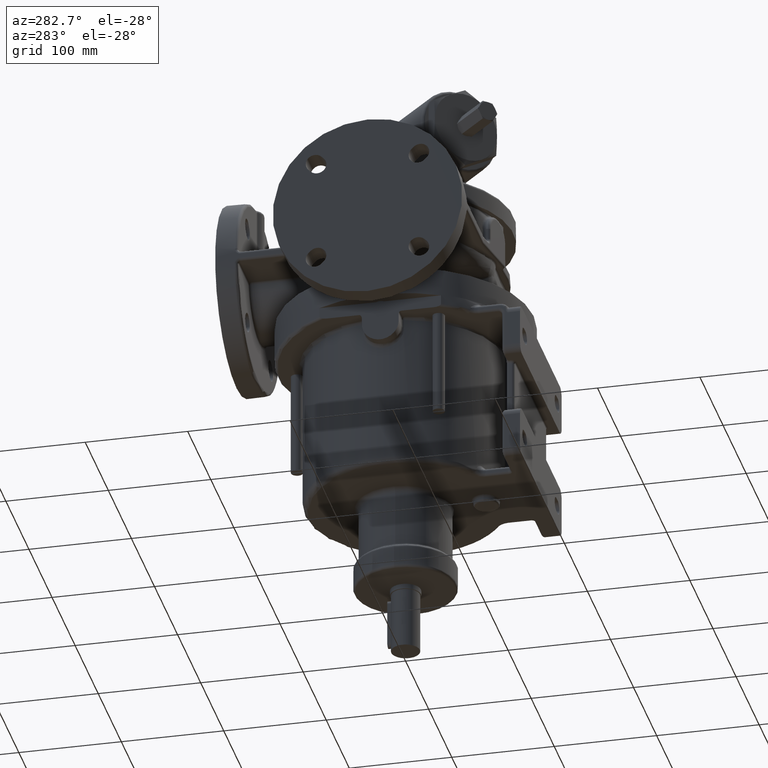
[diagram: clean part render]
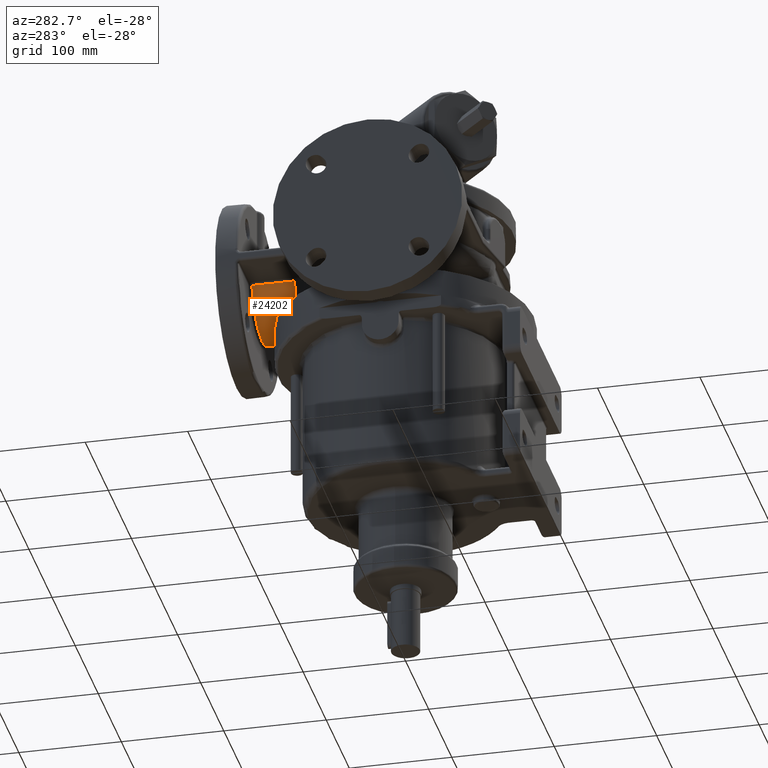
[diagram: same view with one face highlighted and labeled with its STEP entity id]
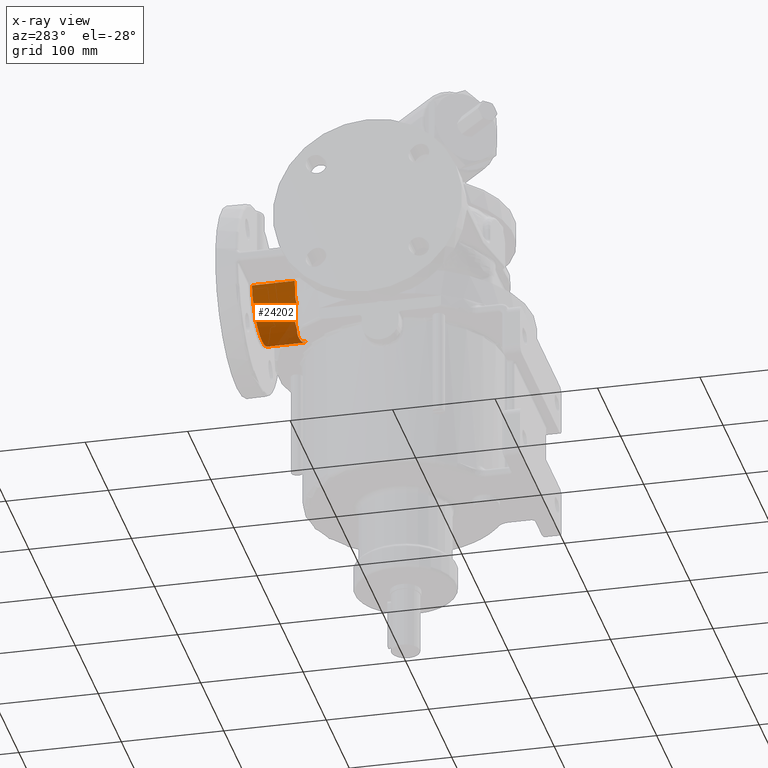
[diagram: x-ray of the same camera — body ghosted, the highlighted face saturated]
A machine part, auxiliary view. The second image highlights one B-rep face of the part: STEP entity #24202.
The next image is the same camera in x-ray: the body ghosted, the highlighted face saturated — about 12% of this face is hidden behind the body in this view.
In plain terms, the highlighted cylindrical surface (partial cylindrical patch) has radius 45 mm, axis along (0, -1, 0).
Its self-contained STEP definition (entity closure, byte-faithful):
#547=DIRECTION('',(-3.485948557403E-7,9.999999999999E-1,6.574412565589E-8));
#548=VECTOR('',#547,9.313747933146E0);
#549=CARTESIAN_POINT('',(4.437060161997E1,1.306862520669E2,6.799999938768E1));
#550=LINE('',#549,#548);
#551=CARTESIAN_POINT('',(6.812780867534E-14,1.4E2,7.55E1));
#552=DIRECTION('',(0.E0,1.E0,0.E0));
#553=DIRECTION('',(9.860132971833E-1,0.E0,-1.666666666667E-1));
#554=AXIS2_PLACEMENT_3D('',#551,#552,#553);
#556=DIRECTION('',(-2.459919412907E-7,-9.999999999998E-1,6.188692304295E-7));
#557=VECTOR('',#556,4.169659441105E1);
#558=CARTESIAN_POINT('',(-4.437059837325E1,1.4E2,6.8E1));
#559=LINE('',#558,#557);
#560=CARTESIAN_POINT('',(4.498155125677E-14,9.830340948588E1,7.55E1));
#561=DIRECTION('',(0.E0,-1.E0,0.E0));
#562=DIRECTION('',(-9.860133464375E-1,0.E0,-1.666663752746E-1));
#563=AXIS2_PLACEMENT_3D('',#560,#561,#562);
#565=CARTESIAN_POINT('',(-4.202492674863E1,9.830340947784E1,5.940944095535E1));
#566=CARTESIAN_POINT('',(-4.193798821771E1,9.834971436452E1,5.918237630607E1));
#567=CARTESIAN_POINT('',(-4.175887995572E1,9.843707885204E1,5.872562743169E1));
#568=CARTESIAN_POINT('',(-4.147387685293E1,9.855238139865E1,5.803266765895E1));
#569=CARTESIAN_POINT('',(-4.117247793736E1,9.865187536483E1,5.733343954101E1));
#570=CARTESIAN_POINT('',(-4.085380629793E1,9.873504815109E1,5.662757521520E1));
#571=CARTESIAN_POINT('',(-4.052096516571E1,9.880080156037E1,5.592313402641E1));
#572=CARTESIAN_POINT('',(-4.017594302279E1,9.884873381005E1,5.522448164842E1));
#573=CARTESIAN_POINT('',(-3.981760264965E1,9.887900340330E1,5.452948244572E1));
#574=CARTESIAN_POINT('',(-3.944792220142E1,9.889148763489E1,5.384214842284E1));
#575=CARTESIAN_POINT('',(-3.907072082732E1,9.888619515039E1,5.316897274623E1));
#576=CARTESIAN_POINT('',(-3.868652149345E1,9.886331466672E1,5.250988588922E1));
#577=CARTESIAN_POINT('',(-3.829455541106E1,9.882288565312E1,5.186282267243E1));
#578=CARTESIAN_POINT('',(-3.789678932081E1,9.876522002351E1,5.123036738858E1));
#579=CARTESIAN_POINT('',(-3.749886145263E1,9.869130877434E1,5.062012232985E1));
#580=CARTESIAN_POINT('',(-3.709995680240E1,9.860122779373E1,5.002925729164E1));
#581=CARTESIAN_POINT('',(-3.670041022402E1,9.849522889600E1,4.945695471992E1));
#582=CARTESIAN_POINT('',(-3.629876731353E1,9.837301044633E1,4.890016640110E1));
#583=CARTESIAN_POINT('',(-3.590498436911E1,9.823785187696E1,4.837121076375E1));
#584=CARTESIAN_POINT('',(-3.564766662405E1,9.813932332609E1,4.803571831611E1));
#585=CARTESIAN_POINT('',(-3.552049711598E1,9.808810377546E1,4.787221897099E1));
#587=CARTESIAN_POINT('',(-3.552049711598E1,9.808810377546E1,4.787221897099E1));
#588=CARTESIAN_POINT('',(-3.540907380422E1,9.820695530790E1,4.772896420138E1));
#589=CARTESIAN_POINT('',(-3.518383279014E1,9.844721238017E1,4.744295297410E1));
#590=CARTESIAN_POINT('',(-3.483877852575E1,9.881527025719E1,4.701560662692E1));
#591=CARTESIAN_POINT('',(-3.460388939830E1,9.906581866400E1,4.673187609486E1));
#592=CARTESIAN_POINT('',(-3.448523050008E1,9.919238815542E1,4.659033245856E1));
#594=CARTESIAN_POINT('',(-3.448523050008E1,9.919238815542E1,4.659033245856E1));
#595=CARTESIAN_POINT('',(-3.437633412171E1,9.930854172083E1,4.646043409206E1));
#596=CARTESIAN_POINT('',(-3.415376874516E1,9.953717669159E1,4.619792053954E1));
#597=CARTESIAN_POINT('',(-3.380443668331E1,9.986949335229E1,4.579549997066E1));
#598=CARTESIAN_POINT('',(-3.344121533981E1,1.001891195004E2,4.538709660875E1));
#599=CARTESIAN_POINT('',(-3.306508032371E1,1.004947630458E2,4.497449798949E1));
#600=CARTESIAN_POINT('',(-3.267736362118E1,1.007851575760E2,4.455975334791E1));
#601=CARTESIAN_POINT('',(-3.227943201816E1,1.010591899342E2,4.414478508339E1));
#602=CARTESIAN_POINT('',(-3.187287522381E1,1.013158806796E2,4.373158022019E1));
#603=CARTESIAN_POINT('',(-3.145897978467E1,1.015546396877E2,4.332165259553E1));
#604=CARTESIAN_POINT('',(-3.103894273324E1,1.017750815316E2,4.291629787052E1));
#605=CARTESIAN_POINT('',(-3.061391596036E1,1.019769685821E2,4.251665030824E1));
#606=CARTESIAN_POINT('',(-3.018500325647E1,1.021601770021E2,4.212369289040E1));
#607=CARTESIAN_POINT('',(-2.975323398895E1,1.023247208474E2,4.173824599790E1));
#608=CARTESIAN_POINT('',(-2.931952775780E1,1.024707011527E2,4.136095250936E1));
#609=CARTESIAN_POINT('',(-2.888474987752E1,1.025983135604E2,4.099234118038E1));
#610=CARTESIAN_POINT('',(-2.844961814928E1,1.027078080231E2,4.063276158826E1));
#611=CARTESIAN_POINT('',(-2.801485173179E1,1.027994837690E2,4.028252205719E1));
#612=CARTESIAN_POINT('',(-2.758112469514E1,1.028736507586E2,3.994185551275E1));
#613=CARTESIAN_POINT('',(-2.714904451202E1,1.029306729772E2,3.961091013497E1));
#614=CARTESIAN_POINT('',(-2.671902797309E1,1.029709212726E2,3.928966692396E1));
#615=CARTESIAN_POINT('',(-2.629146716892E1,1.029947786294E2,3.897807993542E1));
#616=CARTESIAN_POINT('',(-2.600839167678E1,1.029999997194E2,3.877680213797E1));
#617=CARTESIAN_POINT('',(-2.586736660436E1,1.03E2,3.867773302803E1));
#619=CARTESIAN_POINT('',(4.758868271977E-14,1.03E2,7.55E1));
#620=DIRECTION('',(0.E0,-1.E0,0.E0));
#621=DIRECTION('',(-5.748303689859E-1,0.E0,-8.182725993772E-1));
#622=AXIS2_PLACEMENT_3D('',#619,#620,#621);
#624=CARTESIAN_POINT('',(-1.297290711491E1,1.030000007602E2,3.241051306668E1));
#625=CARTESIAN_POINT('',(-1.267354312428E1,1.030709394727E2,3.232038347768E1));
#626=CARTESIAN_POINT('',(-1.207345603599E1,1.032076961273E2,3.214651677887E1));
#627=CARTESIAN_POINT('',(-1.116821329196E1,1.033978877844E2,3.190455847117E1));
#628=CARTESIAN_POINT('',(-1.026270095471E1,1.035723029936E2,3.168259200416E1));
#629=CARTESIAN_POINT('',(-9.357024781123E0,1.037310885873E2,3.148032487711E1));
#630=CARTESIAN_POINT('',(-8.451457311399E0,1.038743558402E2,3.129755314284E1));
#631=CARTESIAN_POINT('',(-7.545938190080E0,1.040022309330E2,3.113402821694E1));
#632=CARTESIAN_POINT('',(-6.642619985744E0,1.041145389399E2,3.098985474061E1));
#633=CARTESIAN_POINT('',(-5.740410248413E0,1.042114776722E2,3.086454632843E1));
#634=CARTESIAN_POINT('',(-4.838265424717E0,1.042933043447E2,3.075779948862E1));
#635=CARTESIAN_POINT('',(-3.940666430319E0,1.043596272134E2,3.066987116724E1));
#636=CARTESIAN_POINT('',(-3.344975829538E0,1.043935752871E2,3.062350520750E1));
#637=CARTESIAN_POINT('',(-3.047921190825E0,1.044079993594E2,3.060333891724E1));
#639=CARTESIAN_POINT('',(-3.047921190825E0,1.044079993594E2,3.060333891724E1));
#640=CARTESIAN_POINT('',(-3.020512534809E0,1.044093882291E2,3.060147821280E1));
#641=CARTESIAN_POINT('',(-2.966426749750E0,1.044119725687E2,3.059785690391E1));
#642=CARTESIAN_POINT('',(-2.887538376920E0,1.044155137061E2,3.059271608426E1));
#643=CARTESIAN_POINT('',(-2.836379048979E0,1.044177327435E2,3.058947126938E1));
#644=CARTESIAN_POINT('',(-2.811149592728E0,1.044188767234E2,3.058789207913E1));
#646=CARTESIAN_POINT('',(-2.811149592728E0,1.044188767234E2,3.058789207913E1));
#647=CARTESIAN_POINT('',(-2.772810270620E0,1.044205082627E2,3.058549230061E1));
#648=CARTESIAN_POINT('',(-2.699323620566E0,1.044237966761E2,3.058099138519E1));
#649=CARTESIAN_POINT('',(-2.599290211955E0,1.044280235084E2,3.057509892229E1));
#650=CARTESIAN_POINT('',(-2.507810395480E0,1.044315433010E2,3.056990493061E1));
#651=CARTESIAN_POINT('',(-2.424118108388E0,1.044346672184E2,3.056531637954E1));
#652=CARTESIAN_POINT('',(-2.347387666911E0,1.044374734035E2,3.056124641273E1));
#653=CARTESIAN_POINT('',(-2.276940594864E0,1.044399452713E2,3.055762508586E1));
#654=CARTESIAN_POINT('',(-2.212179379664E0,1.044421183992E2,3.055439344139E1));
#655=CARTESIAN_POINT('',(-2.152564557225E0,1.044440987286E2,3.055150101913E1));
#656=CARTESIAN_POINT('',(-2.097680096484E0,1.044456382162E2,3.054890824424E1));
#657=CARTESIAN_POINT('',(-2.046926312824E0,1.044478053547E2,3.054656911685E1));
#658=CARTESIAN_POINT('',(-2.016260449796E0,1.044470829003E2,3.054519213170E1));
#659=CARTESIAN_POINT('',(-2.001695948455E0,1.044474957515E2,3.054454372909E1));
#661=CARTESIAN_POINT('',(-2.001695948455E0,1.044474957515E2,3.054454372909E1));
#662=CARTESIAN_POINT('',(-1.662993801106E0,1.044569539745E2,3.052946492874E1));
#663=CARTESIAN_POINT('',(-9.809251446751E-1,1.044715390889E2,3.050675880371E1));
#664=CARTESIAN_POINT('',(5.581824704800E-2,1.044809242212E2,3.049600496116E1));
#665=CARTESIAN_POINT('',(1.105174532319E0,1.044781192975E2,3.050944500323E1));
#666=CARTESIAN_POINT('',(2.166256852249E0,1.044636751261E2,3.054794301784E1));
#667=CARTESIAN_POINT('',(3.238003992305E0,1.044383115271E2,3.061232316448E1));
#668=CARTESIAN_POINT('',(4.318445892573E0,1.044028064137E2,3.070327682821E1));
#669=CARTESIAN_POINT('',(5.405751341807E0,1.043579019765E2,3.082137200285E1));
#670=CARTESIAN_POINT('',(6.498366275242E0,1.043043215224E2,3.096710029023E1));
#671=CARTESIAN_POINT('',(7.594872937931E0,1.042428809686E2,3.114087793302E1));
#672=CARTESIAN_POINT('',(8.694706341878E0,1.041745663363E2,3.134321230751E1));
#673=CARTESIAN_POINT('',(9.796515175668E0,1.041005950337E2,3.157445953801E1));
#674=CARTESIAN_POINT('',(1.089761303684E1,1.040224186792E2,3.183456350568E1));
#675=CARTESIAN_POINT('',(1.199540754257E1,1.039415218329E2,3.212327162628E1));
#676=CARTESIAN_POINT('',(1.308711069032E1,1.038594322890E2,3.244006162606E1));
#677=CARTESIAN_POINT('',(1.416974436821E1,1.037777636656E2,3.278410787878E1));
#678=CARTESIAN_POINT('',(1.523996235209E1,1.036982831775E2,3.315417319636E1));
#679=CARTESIAN_POINT('',(1.629483421700E1,1.036228322496E2,3.354886187084E1));
#680=CARTESIAN_POINT('',(1.733102410007E1,1.035531869519E2,3.396630296500E1));
#681=CARTESIAN_POINT('',(1.834829430562E1,1.034906612656E2,3.440563783962E1));
#682=CARTESIAN_POINT('',(1.934832474422E1,1.034361431668E2,3.486695287274E1));
#683=CARTESIAN_POINT('',(2.033210004397E1,1.033902148315E2,3.535022343983E1));
#684=CARTESIAN_POINT('',(2.130050276793E1,1.033530879043E2,3.585551289499E1));
#685=CARTESIAN_POINT('',(2.225462196474E1,1.033247684591E2,3.638315451939E1));
#686=CARTESIAN_POINT('',(2.319534708822E1,1.033053180188E2,3.693353252299E1));
#687=CARTESIAN_POINT('',(2.412560362360E1,1.032948726823E2,3.750846183982E1));
#688=CARTESIAN_POINT('',(2.504910711017E1,1.032930403280E2,3.811082650500E1));
#689=CARTESIAN_POINT('',(2.596307886940E1,1.032990775081E2,3.873954877804E1));
#690=CARTESIAN_POINT('',(2.686464858964E1,1.033022491285E2,3.939315607122E1));
#691=CARTESIAN_POINT('',(2.745456705507E1,1.033165307126E2,3.984352131919E1));
#692=CARTESIAN_POINT('',(2.774691315533E1,1.033256241898E2,4.007248827279E1));
#694=CARTESIAN_POINT('',(2.774691315533E1,1.033256241898E2,4.007248827279E1));
#695=CARTESIAN_POINT('',(2.789160729038E1,1.035374340970E2,4.018581375603E1));
#696=CARTESIAN_POINT('',(2.819652815296E1,1.039939786105E2,4.042753806888E1));
#697=CARTESIAN_POINT('',(2.869812657029E1,1.047592171252E2,4.083609980541E1));
#698=CARTESIAN_POINT('',(2.926416461078E1,1.056349746349E2,4.131261013610E1));
#699=CARTESIAN_POINT('',(2.980101797015E1,1.064598952382E2,4.177896708787E1));
#700=CARTESIAN_POINT('',(3.045992284474E1,1.074551222389E2,4.237183358836E1));
#701=CARTESIAN_POINT('',(3.112169344838E1,1.084322075693E2,4.299290223420E1));
#702=CARTESIAN_POINT('',(3.177006470879E1,1.093697974991E2,4.362617258043E1));
#703=CARTESIAN_POINT('',(3.241496885222E1,1.102844754189E2,4.428214341143E1));
#704=CARTESIAN_POINT('',(3.305075751686E1,1.111701506860E2,4.495601690322E1));
#705=CARTESIAN_POINT('',(3.367502423711E1,1.120254093387E2,4.564565946995E1));
#706=CARTESIAN_POINT('',(3.428511967568E1,1.128482489155E2,4.634834972833E1));
#707=CARTESIAN_POINT('',(3.487908225060E1,1.136375197650E2,4.706172028242E1));
#708=CARTESIAN_POINT('',(3.545570163676E1,1.143928991500E2,4.778400533491E1));
#709=CARTESIAN_POINT('',(3.582797621933E1,1.148739145328E2,4.827043293527E1));
#710=CARTESIAN_POINT('',(3.601106068513E1,1.151089231005E2,4.851475394297E1));
#712=CARTESIAN_POINT('',(4.204968829050E1,1.270983652718E2,5.947412614641E1));
#713=CARTESIAN_POINT('',(4.193675222731E1,1.269191788407E2,5.917778354410E1));
#714=CARTESIAN_POINT('',(4.170693501047E1,1.265492448276E2,5.859352141105E1));
#715=CARTESIAN_POINT('',(4.135231810993E1,1.259595077648E2,5.774434157100E1));
#716=CARTESIAN_POINT('',(4.099077064938E1,1.253324484782E2,5.692529181792E1));
#717=CARTESIAN_POINT('',(4.062281512601E1,1.246741477281E2,5.613417066855E1));
#718=CARTESIAN_POINT('',(4.025025342183E1,1.239854841752E2,5.537161001930E1));
#719=CARTESIAN_POINT('',(3.974925671284E1,1.230290063972E2,5.439278102794E1));
#720=CARTESIAN_POINT('',(3.911697351594E1,1.217702836284E2,5.323677281491E1));
#721=CARTESIAN_POINT('',(3.835281945689E1,1.201793607626E2,5.194635991626E1));
#722=CARTESIAN_POINT('',(3.758434696685E1,1.185264289215E2,5.073971190741E1));
#723=CARTESIAN_POINT('',(3.693680572339E1,1.171137748836E2,4.978946765262E1));
#724=CARTESIAN_POINT('',(3.647701233995E1,1.161135953150E2,4.914632273509E1));
#725=CARTESIAN_POINT('',(3.621163562662E1,1.155401075260E2,4.878380410094E1));
#726=CARTESIAN_POINT('',(3.607805077955E1,1.152527665196E2,4.860415026237E1));
#727=CARTESIAN_POINT('',(3.601106068513E1,1.151089231005E2,4.851475394297E1));
#770=CARTESIAN_POINT('',(4.437060161997E1,1.306862520669E2,6.799999938768E1));
#772=CARTESIAN_POINT('',(4.437060161997E1,1.306862520669E2,6.799999938768E1));
#773=CARTESIAN_POINT('',(4.432947031657E1,1.306243513662E2,6.775666289188E1));
#774=CARTESIAN_POINT('',(4.424275320764E1,1.304936223277E2,6.726778595697E1));
#775=CARTESIAN_POINT('',(4.409676434934E1,1.302728303777E2,6.651839679917E1));
#776=CARTESIAN_POINT('',(4.394052942458E1,1.300354562259E2,6.578344539288E1));
#777=CARTESIAN_POINT('',(4.378149242691E1,1.297929487916E2,6.509189534778E1));
#778=CARTESIAN_POINT('',(4.363444676780E1,1.295680491282E2,6.449343598608E1));
#779=CARTESIAN_POINT('',(4.349885756720E1,1.293598629892E2,6.397025604751E1));
#780=CARTESIAN_POINT('',(4.337408357674E1,1.291678184049E2,6.351018303435E1));
#781=CARTESIAN_POINT('',(4.325920631172E1,1.289905481286E2,6.310265549556E1));
#782=CARTESIAN_POINT('',(4.315351837798E1,1.288270565734E2,6.274005232293E1));
#783=CARTESIAN_POINT('',(4.305624511211E1,1.286762767544E2,6.241588903536E1));
#784=CARTESIAN_POINT('',(4.296669637673E1,1.285372263703E2,6.212499473758E1));
#785=CARTESIAN_POINT('',(4.288420386293E1,1.284089246714E2,6.186300107766E1));
#786=CARTESIAN_POINT('',(4.280819241495E1,1.282905108880E2,6.162638207697E1));
#787=CARTESIAN_POINT('',(4.273812543603E1,1.281812091372E2,6.141213308475E1));
#788=CARTESIAN_POINT('',(4.267346811183E1,1.280802268925E2,6.121756863778E1));
#789=CARTESIAN_POINT('',(4.261382035661E1,1.279869625101E2,6.104064702977E1));
#790=CARTESIAN_POINT('',(4.255875863819E1,1.279007617199E2,6.087943649682E1));
#791=CARTESIAN_POINT('',(4.250792085124E1,1.278210769093E2,6.073233111572E1));
#792=CARTESIAN_POINT('',(4.246089800242E1,1.277473265347E2,6.059770687820E1));
#793=CARTESIAN_POINT('',(4.241744794137E1,1.276791598715E2,6.047451135868E1));
#794=CARTESIAN_POINT('',(4.237733952738E1,1.276162257229E2,6.036178807875E1));
#795=CARTESIAN_POINT('',(4.234029902116E1,1.275580902374E2,6.025851867463E1));
#796=CARTESIAN_POINT('',(4.230605485459E1,1.275041075543E2,6.016374103673E1));
#797=CARTESIAN_POINT('',(4.227426040183E1,1.274536662445E2,6.007633102312E1));
#798=CARTESIAN_POINT('',(4.224480734999E1,1.274073896996E2,5.999585562067E1));
#799=CARTESIAN_POINT('',(4.221775227438E1,1.273653348900E2,5.992234799956E1));
#800=CARTESIAN_POINT('',(4.219321918784E1,1.273276546560E2,5.985603173129E1));
#801=CARTESIAN_POINT('',(4.217103304048E1,1.272923142492E2,5.979633110551E1));
#802=CARTESIAN_POINT('',(4.215035407580E1,1.272587105738E2,5.974091575329E1));
#803=CARTESIAN_POINT('',(4.213057656495E1,1.272255749566E2,5.968811808288E1));
#804=CARTESIAN_POINT('',(4.211070154151E1,1.271927849456E2,5.963526767419E1));
#805=CARTESIAN_POINT('',(4.209044515011E1,1.271610856505E2,5.958157821329E1));
#806=CARTESIAN_POINT('',(4.206989241696E1,1.271303344121E2,5.952743030309E1));
#807=CARTESIAN_POINT('',(4.205650296903E1,1.271087488535E2,5.949200804407E1));
#808=CARTESIAN_POINT('',(4.204968829050E1,1.270983652718E2,5.947412614641E1));
#1230=CARTESIAN_POINT('',(-3.552049711598E1,9.808810377546E1,4.787221897099E1));
#21438=VERTEX_POINT('',#639);
#21439=VERTEX_POINT('',#644);
#21446=VERTEX_POINT('',#661);
#21447=VERTEX_POINT('',#692);
#21448=VERTEX_POINT('',#712);
#21449=VERTEX_POINT('',#727);
#21463=CARTESIAN_POINT('',(-4.202492964936E1,9.830340947591E1,
5.940943985247E1));
#21465=VERTEX_POINT('',#21463);
#21786=VERTEX_POINT('',#770);
#21788=CARTESIAN_POINT('',(4.437059837325E1,1.4E2,6.8E1));
#21789=VERTEX_POINT('',#21788);
#21794=CARTESIAN_POINT('',(-4.437059837325E1,1.4E2,6.8E1));
#21795=VERTEX_POINT('',#21794);
#21800=CARTESIAN_POINT('',(-4.437060863027E1,9.830340558896E1,
6.800002580474E1));
#21801=VERTEX_POINT('',#21800);
#21814=VERTEX_POINT('',#1230);
#21816=VERTEX_POINT('',#592);
#21818=VERTEX_POINT('',#617);
#21820=CARTESIAN_POINT('',(-1.297290700481E1,1.03E2,3.241051539129E1));
#21821=VERTEX_POINT('',#21820);
#24166=CARTESIAN_POINT('',(8.478115404472E-14,1.7E2,7.55E1));
#24167=DIRECTION('',(0.E0,-1.E0,0.E0));
#24168=DIRECTION('',(1.E0,0.E0,0.E0));
#24169=AXIS2_PLACEMENT_3D('',#24166,#24167,#24168);
#24170=CYLINDRICAL_SURFACE('',#24169,4.5E1);
#24172=ORIENTED_EDGE('',*,*,#24171,.T.);
#24174=ORIENTED_EDGE('',*,*,#24173,.T.);
#24175=ORIENTED_EDGE('',*,*,#24156,.T.);
#24177=ORIENTED_EDGE('',*,*,#24176,.T.);
#24179=ORIENTED_EDGE('',*,*,#24178,.T.);
#24181=ORIENTED_EDGE('',*,*,#24180,.T.);
#24183=ORIENTED_EDGE('',*,*,#24182,.T.);
#24185=ORIENTED_EDGE('',*,*,#24184,.T.);
#24187=ORIENTED_EDGE('',*,*,#24186,.T.);
#24189=ORIENTED_EDGE('',*,*,#24188,.T.);
#24191=ORIENTED_EDGE('',*,*,#24190,.T.);
#24193=ORIENTED_EDGE('',*,*,#24192,.T.);
#24195=ORIENTED_EDGE('',*,*,#24194,.T.);
#24197=ORIENTED_EDGE('',*,*,#24196,.F.);
#24199=ORIENTED_EDGE('',*,*,#24198,.F.);
#24200=EDGE_LOOP('',(#24172,#24174,#24175,#24177,#24179,#24181,#24183,#24185,
#24187,#24189,#24191,#24193,#24195,#24197,#24199));
#24201=FACE_OUTER_BOUND('',#24200,.F.);
#24202=ADVANCED_FACE('',(#24201),#24170,.T.);
#555=CIRCLE('',#554,4.5E1);
#564=CIRCLE('',#563,4.5E1);
#586=B_SPLINE_CURVE_WITH_KNOTS('',3,(#565,#566,#567,#568,#569,#570,#571,#572,
#573,#574,#575,#576,#577,#578,#579,#580,#581,#582,#583,#584,#585),.UNSPECIFIED.,
.F.,.F.,(4,1,1,1,1,1,1,1,1,1,1,1,1,1,1,1,1,1,4),(0.E0,5.555555555556E-2,
1.111111111111E-1,1.666666666667E-1,2.222222222222E-1,2.777777777778E-1,
3.333333333333E-1,3.888888888889E-1,4.444444444444E-1,5.E-1,5.555555555556E-1,
6.111111111111E-1,6.666666666667E-1,7.222222222222E-1,7.777777777778E-1,
8.333333333333E-1,8.888888888889E-1,9.444444444444E-1,1.E0),.UNSPECIFIED.);
#593=B_SPLINE_CURVE_WITH_KNOTS('',3,(#587,#588,#589,#590,#591,#592),
.UNSPECIFIED.,.F.,.F.,(4,1,1,4),(0.E0,3.333333333333E-1,6.666666666667E-1,1.E0),
.UNSPECIFIED.);
#618=B_SPLINE_CURVE_WITH_KNOTS('',3,(#594,#595,#596,#597,#598,#599,#600,#601,
#602,#603,#604,#605,#606,#607,#608,#609,#610,#611,#612,#613,#614,#615,#616,
#617),.UNSPECIFIED.,.F.,.F.,(4,1,1,1,1,1,1,1,1,1,1,1,1,1,1,1,1,1,1,1,1,4),(0.E0,
4.761904761905E-2,9.523809523810E-2,1.428571428571E-1,1.904761904762E-1,
2.380952380952E-1,2.857142857143E-1,3.333333333333E-1,3.809523809524E-1,
4.285714285714E-1,4.761904761905E-1,5.238095238095E-1,5.714285714286E-1,
6.190476190476E-1,6.666666666667E-1,7.142857142857E-1,7.619047619048E-1,
8.095238095238E-1,8.571428571429E-1,9.047619047619E-1,9.523809523810E-1,1.E0),
.UNSPECIFIED.);
#623=CIRCLE('',#622,4.5E1);
#638=B_SPLINE_CURVE_WITH_KNOTS('',3,(#624,#625,#626,#627,#628,#629,#630,#631,
#632,#633,#634,#635,#636,#637),.UNSPECIFIED.,.F.,.F.,(4,1,1,1,1,1,1,1,1,1,1,4),(
0.E0,9.090909090909E-2,1.818181818182E-1,2.727272727273E-1,3.636363636364E-1,
4.545454545455E-1,5.454545454545E-1,6.363636363636E-1,7.272727272727E-1,
8.181818181818E-1,9.090909090909E-1,1.E0),.UNSPECIFIED.);
#645=B_SPLINE_CURVE_WITH_KNOTS('',3,(#639,#640,#641,#642,#643,#644),
.UNSPECIFIED.,.F.,.F.,(4,1,1,4),(0.E0,3.333333333333E-1,6.666666666667E-1,1.E0),
.UNSPECIFIED.);
#660=B_SPLINE_CURVE_WITH_KNOTS('',3,(#646,#647,#648,#649,#650,#651,#652,#653,
#654,#655,#656,#657,#658,#659),.UNSPECIFIED.,.F.,.F.,(4,1,1,1,1,1,1,1,1,1,1,4),(
0.E0,9.090909090909E-2,1.818181818182E-1,2.727272727273E-1,3.636363636364E-1,
4.545454545455E-1,5.454545454545E-1,6.363636363636E-1,7.272727272727E-1,
8.181818181818E-1,9.090909090909E-1,1.E0),.UNSPECIFIED.);
#693=B_SPLINE_CURVE_WITH_KNOTS('',3,(#661,#662,#663,#664,#665,#666,#667,#668,
#669,#670,#671,#672,#673,#674,#675,#676,#677,#678,#679,#680,#681,#682,#683,#684,
#685,#686,#687,#688,#689,#690,#691,#692),.UNSPECIFIED.,.F.,.F.,(4,1,1,1,1,1,1,1,
1,1,1,1,1,1,1,1,1,1,1,1,1,1,1,1,1,1,1,1,1,4),(0.E0,3.448275862069E-2,
6.896551724138E-2,1.034482758621E-1,1.379310344828E-1,1.724137931034E-1,
2.068965517241E-1,2.413793103448E-1,2.758620689655E-1,3.103448275862E-1,
3.448275862069E-1,3.793103448276E-1,4.137931034483E-1,4.482758620690E-1,
4.827586206897E-1,5.172413793103E-1,5.517241379310E-1,5.862068965517E-1,
6.206896551724E-1,6.551724137931E-1,6.896551724138E-1,7.241379310345E-1,
7.586206896552E-1,7.931034482759E-1,8.275862068966E-1,8.620689655172E-1,
8.965517241379E-1,9.310344827586E-1,9.655172413793E-1,1.E0),.UNSPECIFIED.);
#711=B_SPLINE_CURVE_WITH_KNOTS('',3,(#694,#695,#696,#697,#698,#699,#700,#701,
#702,#703,#704,#705,#706,#707,#708,#709,#710),.UNSPECIFIED.,.F.,.F.,(4,1,1,1,1,
1,1,1,1,1,1,1,1,1,4),(0.E0,7.142857142857E-2,1.428571428571E-1,
2.142857142857E-1,2.857142857143E-1,3.571428571429E-1,4.285714285714E-1,5.E-1,
5.714285714286E-1,6.428571428571E-1,7.142857142857E-1,7.857142857143E-1,
8.571428571429E-1,9.285714285714E-1,1.E0),.UNSPECIFIED.);
#728=B_SPLINE_CURVE_WITH_KNOTS('',3,(#712,#713,#714,#715,#716,#717,#718,#719,
#720,#721,#722,#723,#724,#725,#726,#727),.UNSPECIFIED.,.F.,.F.,(4,1,1,1,1,1,1,1,
1,1,1,1,1,4),(0.E0,6.25E-2,1.25E-1,1.875E-1,2.5E-1,3.125E-1,3.75E-1,5.E-1,
6.25E-1,7.5E-1,8.75E-1,9.375E-1,9.6875E-1,1.E0),.UNSPECIFIED.);
#809=B_SPLINE_CURVE_WITH_KNOTS('',3,(#772,#773,#774,#775,#776,#777,#778,#779,
#780,#781,#782,#783,#784,#785,#786,#787,#788,#789,#790,#791,#792,#793,#794,#795,
#796,#797,#798,#799,#800,#801,#802,#803,#804,#805,#806,#807,#808),.UNSPECIFIED.,
.F.,.F.,(4,1,1,1,1,1,1,1,1,1,1,1,1,1,1,1,1,1,1,1,1,1,1,1,1,1,1,1,1,1,1,1,1,1,4),
(0.E0,2.941176470588E-2,5.882352941176E-2,8.823529411765E-2,1.176470588235E-1,
1.470588235294E-1,1.764705882353E-1,2.058823529412E-1,2.352941176471E-1,
2.647058823529E-1,2.941176470588E-1,3.235294117647E-1,3.529411764706E-1,
3.823529411765E-1,4.117647058824E-1,4.411764705882E-1,4.705882352941E-1,5.E-1,
5.294117647059E-1,5.588235294118E-1,5.882352941176E-1,6.176470588235E-1,
6.470588235294E-1,6.764705882353E-1,7.058823529412E-1,7.352941176471E-1,
7.647058823529E-1,7.941176470588E-1,8.235294117647E-1,8.529411764706E-1,
8.823529411765E-1,9.117647058824E-1,9.411764705882E-1,9.705882352941E-1,1.E0),
.UNSPECIFIED.);
#24156=EDGE_CURVE('',#21795,#21801,#559,.T.);
#24171=EDGE_CURVE('',#21786,#21789,#550,.T.);
#24173=EDGE_CURVE('',#21789,#21795,#555,.T.);
#24176=EDGE_CURVE('',#21801,#21465,#564,.T.);
#24178=EDGE_CURVE('',#21465,#21814,#586,.T.);
#24180=EDGE_CURVE('',#21814,#21816,#593,.T.);
#24182=EDGE_CURVE('',#21816,#21818,#618,.T.);
#24184=EDGE_CURVE('',#21818,#21821,#623,.T.);
#24186=EDGE_CURVE('',#21821,#21438,#638,.T.);
#24188=EDGE_CURVE('',#21438,#21439,#645,.T.);
#24190=EDGE_CURVE('',#21439,#21446,#660,.T.);
#24192=EDGE_CURVE('',#21446,#21447,#693,.T.);
#24194=EDGE_CURVE('',#21447,#21449,#711,.T.);
#24196=EDGE_CURVE('',#21448,#21449,#728,.T.);
#24198=EDGE_CURVE('',#21786,#21448,#809,.T.);